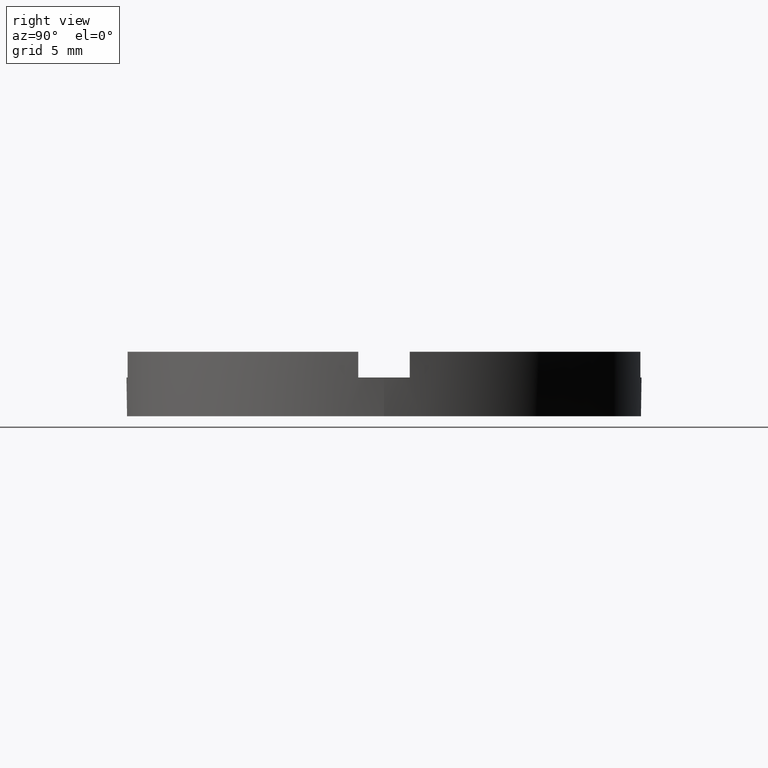
[diagram: clean part render]
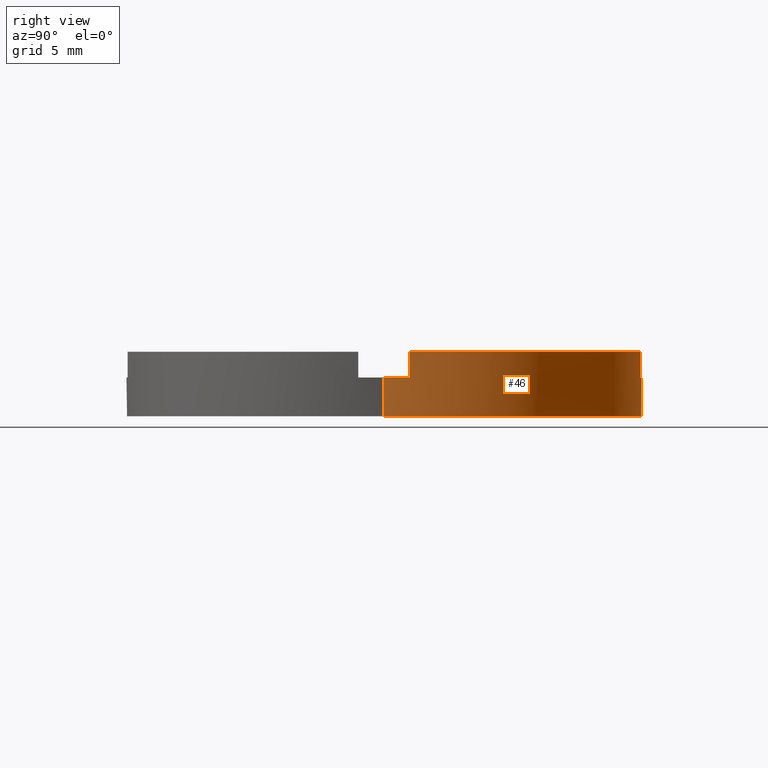
[diagram: same view with one face highlighted and labeled with its STEP entity id]
A machine part, right view. The second image highlights one B-rep face of the part: STEP entity #46.
In plain terms, the highlighted cylindrical surface (partial cylindrical patch) has radius 10 mm, axis along (-0, -0, -1).
Its self-contained STEP definition (entity closure, byte-faithful):
#4 = CARTESIAN_POINT ( 'NONE',  ( -9.949874371066195877, 1.000000000000036193, 1.500000000000000000 ) ) ;
#11 = ORIENTED_EDGE ( 'NONE', *, *, #774, .F. ) ;
#15 = DIRECTION ( 'NONE',  ( -0.000000000000000000, -0.000000000000000000, 1.000000000000000000 ) ) ;
#20 = ORIENTED_EDGE ( 'NONE', *, *, #279, .F. ) ;
#30 = VERTEX_POINT ( 'NONE', #4 ) ;
#46 = ADVANCED_FACE ( 'NONE', ( #145 ), #676, .T. ) ;
#47 = DIRECTION ( 'NONE',  ( -0.000000000000000000, 0.000000000000000000, 1.000000000000000000 ) ) ;
#60 = DIRECTION ( 'NONE',  ( -0.000000000000000000, -0.000000000000000000, -1.000000000000000000 ) ) ;
#61 = CARTESIAN_POINT ( 'NONE',  ( 0.000000000000000000, 0.000000000000000000, 0.000000000000000000 ) ) ;
#67 = CARTESIAN_POINT ( 'NONE',  ( 0.000000000000000000, 0.000000000000000000, 1.500000000000000000 ) ) ;
#72 = CARTESIAN_POINT ( 'NONE',  ( -10.00000000000000000, 0.000000000000000000, 0.000000000000000000 ) ) ;
#80 = CARTESIAN_POINT ( 'NONE',  ( 10.00000000000000000, 1.224646799147353256E-15, 0.000000000000000000 ) ) ;
#82 = CARTESIAN_POINT ( 'NONE',  ( 10.00000000000000000, 1.224646799147353256E-15, 2.500000000000000000 ) ) ;
#86 = CARTESIAN_POINT ( 'NONE',  ( 10.00000000000000000, 1.224646799147353256E-15, 1.500000000000000000 ) ) ;
#102 = AXIS2_PLACEMENT_3D ( 'NONE', #238, #411, #557 ) ;
#119 = DIRECTION ( 'NONE',  ( 0.000000000000000000, 0.000000000000000000, 1.000000000000000000 ) ) ;
#133 = DIRECTION ( 'NONE',  ( 1.000000000000000000, 0.000000000000000000, 0.000000000000000000 ) ) ;
#145 = FACE_OUTER_BOUND ( 'NONE', #406, .T. ) ;
#156 = ORIENTED_EDGE ( 'NONE', *, *, #708, .T. ) ;
#160 = DIRECTION ( 'NONE',  ( -0.000000000000000000, 0.000000000000000000, 1.000000000000000000 ) ) ;
#164 = CIRCLE ( 'NONE', #651, 10.00000000000000000 ) ;
#190 = LINE ( 'NONE', #343, #467 ) ;
#205 = EDGE_CURVE ( 'NONE', #274, #285, #164, .T. ) ;
#210 = CARTESIAN_POINT ( 'NONE',  ( 9.949874371066202983, 0.9999999999999615863, 2.500000000000000000 ) ) ;
#220 = CARTESIAN_POINT ( 'NONE',  ( 0.000000000000000000, 0.000000000000000000, 2.500000000000000000 ) ) ;
#223 = CARTESIAN_POINT ( 'NONE',  ( -0.9999999999999986677, 9.949874371066199430, 1.500000000000000000 ) ) ;
#227 = AXIS2_PLACEMENT_3D ( 'NONE', #67, #47, #276 ) ;
#231 = CARTESIAN_POINT ( 'NONE',  ( -9.949874371066195877, 1.000000000000036193, 2.500000000000000000 ) ) ;
#232 = DIRECTION ( 'NONE',  ( -0.000000000000000000, -0.000000000000000000, -1.000000000000000000 ) ) ;
#238 = CARTESIAN_POINT ( 'NONE',  ( 0.000000000000000000, 0.000000000000000000, 2.500000000000000000 ) ) ;
#246 = ORIENTED_EDGE ( 'NONE', *, *, #570, .T. ) ;
#248 = VERTEX_POINT ( 'NONE', #524 ) ;
#260 = CARTESIAN_POINT ( 'NONE',  ( 1.000000000000001332, 9.949874371066199430, 1.500000000000000000 ) ) ;
#263 = VERTEX_POINT ( 'NONE', #86 ) ;
#266 = DIRECTION ( 'NONE',  ( 1.000000000000000000, 0.000000000000000000, 0.000000000000000000 ) ) ;
#268 = VERTEX_POINT ( 'NONE', #231 ) ;
#271 = ORIENTED_EDGE ( 'NONE', *, *, #385, .F. ) ;
#274 = VERTEX_POINT ( 'NONE', #80 ) ;
#276 = DIRECTION ( 'NONE',  ( 1.000000000000000000, 0.000000000000000000, 0.000000000000000000 ) ) ;
#279 = EDGE_CURVE ( 'NONE', #30, #777, #403, .T. ) ;
#285 = VERTEX_POINT ( 'NONE', #72 ) ;
#290 = CARTESIAN_POINT ( 'NONE',  ( 0.000000000000000000, 0.000000000000000000, 1.500000000000000000 ) ) ;
#299 = DIRECTION ( 'NONE',  ( -0.000000000000000000, 0.000000000000000000, 1.000000000000000000 ) ) ;
#302 = EDGE_CURVE ( 'NONE', #387, #527, #428, .T. ) ;
#308 = AXIS2_PLACEMENT_3D ( 'NONE', #290, #160, #494 ) ;
#312 = DIRECTION ( 'NONE',  ( -0.000000000000000000, -0.000000000000000000, 1.000000000000000000 ) ) ;
#317 = DIRECTION ( 'NONE',  ( -0.000000000000000000, -0.000000000000000000, 1.000000000000000000 ) ) ;
#318 = CARTESIAN_POINT ( 'NONE',  ( 0.000000000000000000, 0.000000000000000000, 2.500000000000000000 ) ) ;
#320 = DIRECTION ( 'NONE',  ( 0.000000000000000000, 0.000000000000000000, 1.000000000000000000 ) ) ;
#343 = CARTESIAN_POINT ( 'NONE',  ( -10.00000000000000000, 0.000000000000000000, 2.500000000000000000 ) ) ;
#345 = DIRECTION ( 'NONE',  ( 1.000000000000000000, 0.000000000000000000, 0.000000000000000000 ) ) ;
#356 = ORIENTED_EDGE ( 'NONE', *, *, #302, .F. ) ;
#357 = DIRECTION ( 'NONE',  ( 0.000000000000000000, 0.000000000000000000, 1.000000000000000000 ) ) ;
#358 = DIRECTION ( 'NONE',  ( 1.000000000000000000, 0.000000000000000000, 0.000000000000000000 ) ) ;
#365 = CARTESIAN_POINT ( 'NONE',  ( 9.949874371066202983, 0.9999999999999615863, 1.500000000000000000 ) ) ;
#385 = EDGE_CURVE ( 'NONE', #263, #387, #409, .T. ) ;
#387 = VERTEX_POINT ( 'NONE', #365 ) ;
#403 = CIRCLE ( 'NONE', #308, 10.00000000000000000 ) ;
#406 = EDGE_LOOP ( 'NONE', ( #271, #246, #534, #438, #20, #156, #740, #546, #533, #672, #11, #356 ) ) ;
#408 = EDGE_CURVE ( 'NONE', #654, #632, #412, .T. ) ;
#409 = CIRCLE ( 'NONE', #227, 10.00000000000000000 ) ;
#411 = DIRECTION ( 'NONE',  ( -0.000000000000000000, -0.000000000000000000, -1.000000000000000000 ) ) ;
#412 = LINE ( 'NONE', #223, #671 ) ;
#428 = LINE ( 'NONE', #627, #431 ) ;
#431 = VECTOR ( 'NONE', #729, 1000.000000000000000 ) ;
#438 = ORIENTED_EDGE ( 'NONE', *, *, #760, .F. ) ;
#442 = LINE ( 'NONE', #260, #473 ) ;
#447 = CARTESIAN_POINT ( 'NONE',  ( 0.000000000000000000, 0.000000000000000000, 1.500000000000000000 ) ) ;
#449 = CIRCLE ( 'NONE', #582, 10.00000000000000000 ) ;
#451 = CIRCLE ( 'NONE', #758, 10.00000000000000000 ) ;
#462 = LINE ( 'NONE', #656, #721 ) ;
#467 = VECTOR ( 'NONE', #60, 1000.000000000000000 ) ;
#473 = VECTOR ( 'NONE', #317, 1000.000000000000000 ) ;
#494 = DIRECTION ( 'NONE',  ( 1.000000000000000000, 0.000000000000000000, 0.000000000000000000 ) ) ;
#501 = AXIS2_PLACEMENT_3D ( 'NONE', #220, #320, #358 ) ;
#505 = CARTESIAN_POINT ( 'NONE',  ( -0.9999999999999986677, 9.949874371066199430, 2.500000000000000000 ) ) ;
#515 = CARTESIAN_POINT ( 'NONE',  ( -10.00000000000000000, 0.000000000000000000, 1.500000000000000000 ) ) ;
#524 = CARTESIAN_POINT ( 'NONE',  ( 1.000000000000001332, 9.949874371066199430, 1.500000000000000000 ) ) ;
#527 = VERTEX_POINT ( 'NONE', #210 ) ;
#530 = EDGE_CURVE ( 'NONE', #248, #667, #442, .T. ) ;
#533 = ORIENTED_EDGE ( 'NONE', *, *, #595, .F. ) ;
#534 = ORIENTED_EDGE ( 'NONE', *, *, #205, .T. ) ;
#539 = EDGE_CURVE ( 'NONE', #632, #268, #449, .T. ) ;
#546 = ORIENTED_EDGE ( 'NONE', *, *, #408, .F. ) ;
#557 = DIRECTION ( 'NONE',  ( -1.000000000000000000, 0.000000000000000000, 0.000000000000000000 ) ) ;
#559 = CARTESIAN_POINT ( 'NONE',  ( -0.9999999999999986677, 9.949874371066199430, 1.500000000000000000 ) ) ;
#570 = EDGE_CURVE ( 'NONE', #263, #274, #715, .T. ) ;
#582 = AXIS2_PLACEMENT_3D ( 'NONE', #318, #357, #133 ) ;
#595 = EDGE_CURVE ( 'NONE', #248, #654, #451, .T. ) ;
#627 = CARTESIAN_POINT ( 'NONE',  ( 9.949874371066202983, 0.9999999999999615863, 1.500000000000000000 ) ) ;
#632 = VERTEX_POINT ( 'NONE', #505 ) ;
#651 = AXIS2_PLACEMENT_3D ( 'NONE', #61, #119, #266 ) ;
#654 = VERTEX_POINT ( 'NONE', #559 ) ;
#656 = CARTESIAN_POINT ( 'NONE',  ( -9.949874371066195877, 1.000000000000036193, 1.500000000000000000 ) ) ;
#667 = VERTEX_POINT ( 'NONE', #680 ) ;
#671 = VECTOR ( 'NONE', #312, 1000.000000000000000 ) ;
#672 = ORIENTED_EDGE ( 'NONE', *, *, #530, .T. ) ;
#676 = CYLINDRICAL_SURFACE ( 'NONE', #102, 10.00000000000000000 ) ;
#680 = CARTESIAN_POINT ( 'NONE',  ( 1.000000000000001332, 9.949874371066199430, 2.500000000000000000 ) ) ;
#701 = VECTOR ( 'NONE', #232, 1000.000000000000000 ) ;
#708 = EDGE_CURVE ( 'NONE', #30, #268, #462, .T. ) ;
#715 = LINE ( 'NONE', #82, #701 ) ;
#721 = VECTOR ( 'NONE', #15, 1000.000000000000000 ) ;
#729 = DIRECTION ( 'NONE',  ( -0.000000000000000000, -0.000000000000000000, 1.000000000000000000 ) ) ;
#733 = CIRCLE ( 'NONE', #501, 10.00000000000000000 ) ;
#740 = ORIENTED_EDGE ( 'NONE', *, *, #539, .F. ) ;
#758 = AXIS2_PLACEMENT_3D ( 'NONE', #447, #299, #345 ) ;
#760 = EDGE_CURVE ( 'NONE', #777, #285, #190, .T. ) ;
#774 = EDGE_CURVE ( 'NONE', #527, #667, #733, .T. ) ;
#777 = VERTEX_POINT ( 'NONE', #515 ) ;